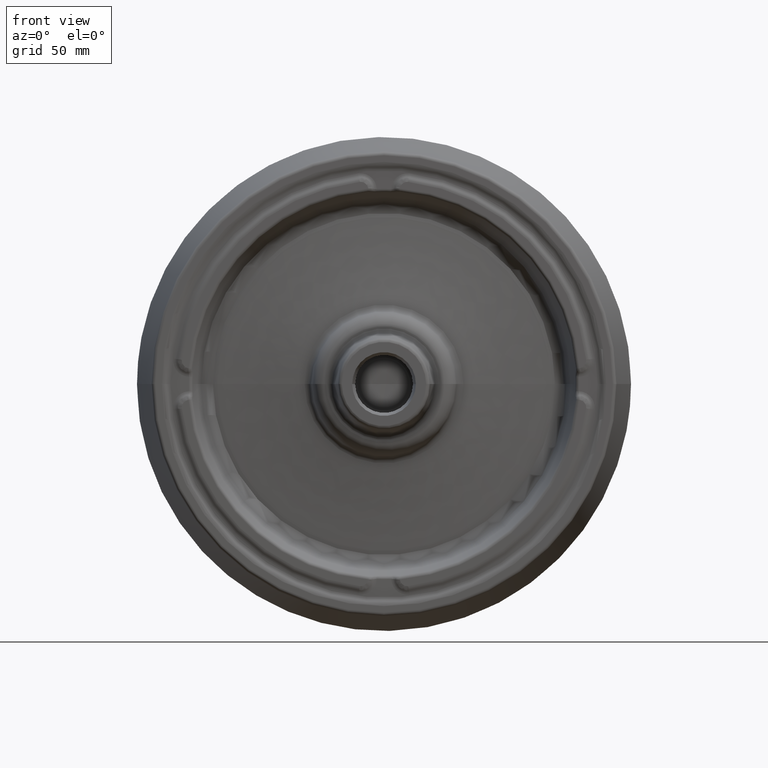
[diagram: clean part render]
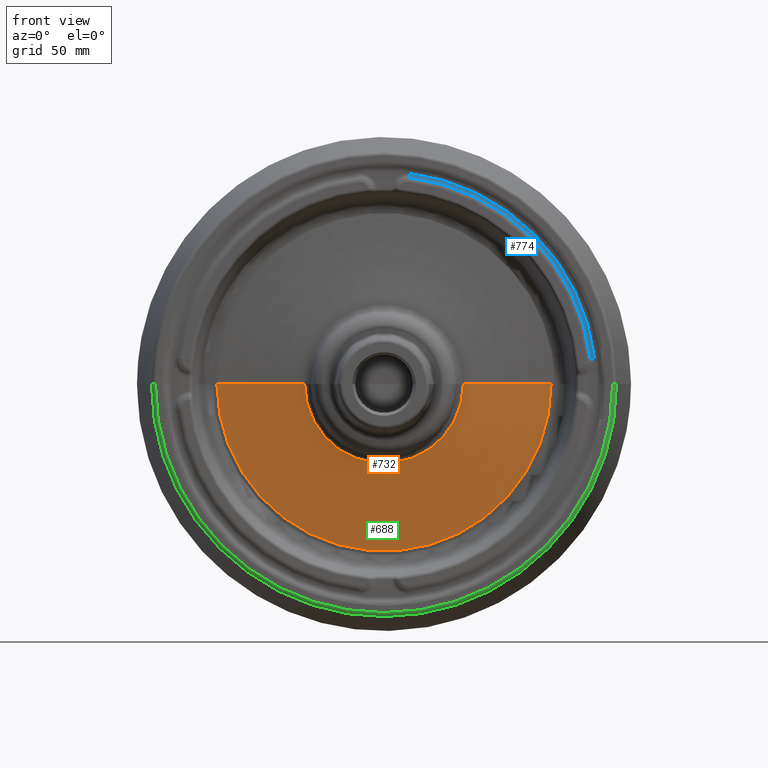
[diagram: same view with three faces highlighted in distinct colors, each labeled with its STEP entity id]
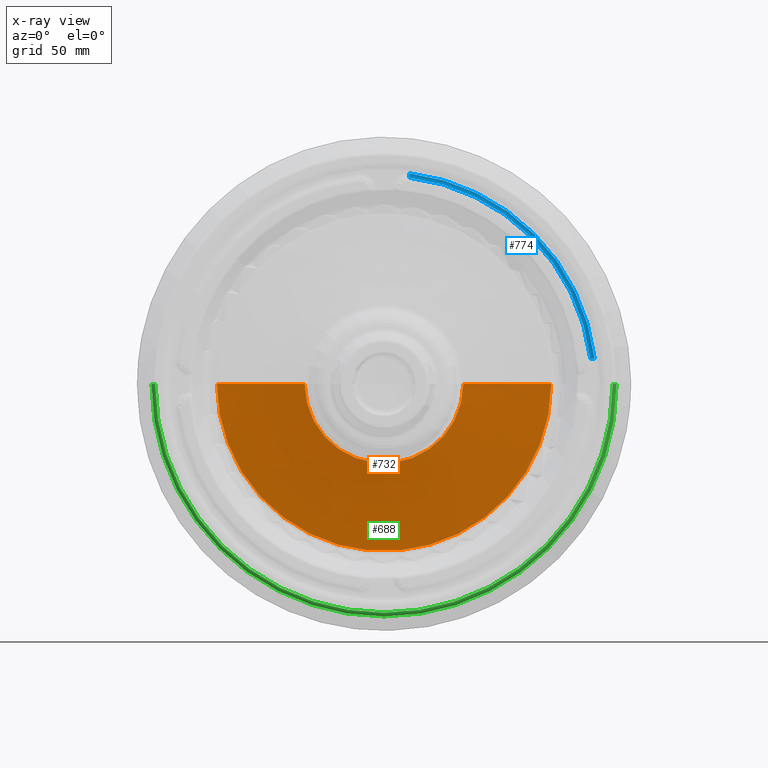
[diagram: x-ray of the same camera — body ghosted, the three highlighted faces saturated]
A machine part, front view with three faces highlighted in distinct colors.
The next image is the same camera in x-ray (body ghosted, the three faces saturated) — at least one of them is partly hidden behind the body in this view.
Their STEP definitions:

[orange] entity #732 — the highlighted face is a SurfaceOfRevolution surface.
#170=SURFACE_OF_REVOLUTION('',#2115,#190);
#190=AXIS1_PLACEMENT('',#9370,#7268);
#732=ADVANCED_FACE('',(#1300),#170,.F.);
#1300=FACE_OUTER_BOUND('',#1717,.T.);
#1717=EDGE_LOOP('',(#2757,#2758,#2759,#2760));
#2112=B_SPLINE_CURVE_WITH_KNOTS('',3,(#9348,#9349,#9350,#9351),
 .UNSPECIFIED.,.F.,.F.,(4,4),(0.,1.),.UNSPECIFIED.);
#2113=B_SPLINE_CURVE_WITH_KNOTS('',3,(#9355,#9356,#9357,#9358),
 .UNSPECIFIED.,.F.,.F.,(4,4),(0.,1.),.UNSPECIFIED.);
#2115=B_SPLINE_CURVE_WITH_KNOTS('',3,(#9366,#9367,#9368,#9369),
 .UNSPECIFIED.,.F.,.F.,(4,4),(0.,1.),.UNSPECIFIED.);
#2757=ORIENTED_EDGE('',*,*,#5053,.F.);
#2758=ORIENTED_EDGE('',*,*,#5054,.T.);
#2759=ORIENTED_EDGE('',*,*,#5051,.T.);
#2760=ORIENTED_EDGE('',*,*,#5055,.F.);
#4453=VERTEX_POINT('',#9343);
#4454=VERTEX_POINT('',#9345);
#4455=VERTEX_POINT('',#9352);
#4456=VERTEX_POINT('',#9354);
#5051=EDGE_CURVE('',#4455,#4454,#2112,.T.);
#5053=EDGE_CURVE('',#4456,#4453,#2113,.T.);
#5054=EDGE_CURVE('',#4456,#4455,#5937,.T.);
#5055=EDGE_CURVE('',#4453,#4454,#5938,.T.);
#5937=CIRCLE('',#6405,128.3791279149);
#5938=CIRCLE('',#6406,60.94708849647);
#6405=AXIS2_PLACEMENT_3D('',#9364,#7264,#7265);
#6406=AXIS2_PLACEMENT_3D('',#9365,#7266,#7267);
#7264=DIRECTION('',(0.,-1.,0.));
#7265=DIRECTION('',(-1.,0.,0.));
#7266=DIRECTION('',(0.,-1.,0.));
#7267=DIRECTION('',(-1.,0.,0.));
#7268=DIRECTION('',(0.,-1.,0.));
#9343=CARTESIAN_POINT('',(-60.94708849647,20.08992255179,0.));
#9345=CARTESIAN_POINT('',(60.94708849647,20.08992255179,0.));
#9348=CARTESIAN_POINT('',(128.3790856184,27.56850578,1.368322122275E-012));
#9349=CARTESIAN_POINT('',(105.8069991423,26.14170694966,1.367638872284E-012));
#9350=CARTESIAN_POINT('',(83.2762797427,23.65063748608,0.));
#9351=CARTESIAN_POINT('',(60.94708849647,20.08992255179,0.));
#9352=CARTESIAN_POINT('',(128.3791279149,27.56850512911,0.));
#9354=CARTESIAN_POINT('',(-128.3791279149,27.56850512911,1.572190880783E-014));
#9355=CARTESIAN_POINT('',(-128.3790856184,27.56850578,-1.254302217646E-012));
#9356=CARTESIAN_POINT('',(-105.8069991423,26.14170694966,-1.261561954348E-012));
#9357=CARTESIAN_POINT('',(-83.2762797427,23.65063748608,-1.054244846608E-014));
#9358=CARTESIAN_POINT('',(-60.94708849647,20.08992255179,-1.772406410449E-014));
#9364=CARTESIAN_POINT('',(0.,27.56850512911,0.));
#9365=CARTESIAN_POINT('',(0.,20.08992255179,0.));
#9366=CARTESIAN_POINT('',(60.94708849647,20.08992255179,0.));
#9367=CARTESIAN_POINT('',(83.27629464651,23.65063986271,0.));
#9368=CARTESIAN_POINT('',(105.8070302877,26.1417070181,0.));
#9369=CARTESIAN_POINT('',(128.379131885,27.56850538007,0.));
#9370=CARTESIAN_POINT('',(2.187684007943E-014,133.35,0.));

[blue] entity #774 — the highlighted toroidal blend (fillet) surface has major radius 162.972 mm and minor (blend) radius 6 mm.
#516=TOROIDAL_SURFACE('',#6448,162.972135955,6.);
#774=ADVANCED_FACE('',(#1342),#516,.F.);
#1342=FACE_OUTER_BOUND('',#1759,.T.);
#1759=EDGE_LOOP('',(#2926,#2927,#2928,#2929));
#2926=ORIENTED_EDGE('',*,*,#5084,.F.);
#2927=ORIENTED_EDGE('',*,*,#4943,.T.);
#2928=ORIENTED_EDGE('',*,*,#5094,.T.);
#2929=ORIENTED_EDGE('',*,*,#5113,.F.);
#4394=VERTEX_POINT('',#8645);
#4395=VERTEX_POINT('',#8647);
#4463=VERTEX_POINT('',#9766);
#4465=VERTEX_POINT('',#9859);
#4943=EDGE_CURVE('',#4395,#4394,#5860,.T.);
#5084=EDGE_CURVE('',#4395,#4463,#5948,.T.);
#5094=EDGE_CURVE('',#4394,#4465,#5953,.T.);
#5113=EDGE_CURVE('',#4463,#4465,#5961,.T.);
#5860=CIRCLE('',#6290,162.972135955);
#5948=CIRCLE('',#6425,6.);
#5953=CIRCLE('',#6432,6.);
#5961=CIRCLE('',#6447,159.6555111646);
#6290=AXIS2_PLACEMENT_3D('',#8646,#7009,#7010);
#6425=AXIS2_PLACEMENT_3D('',#9765,#7307,#7308);
#6432=AXIS2_PLACEMENT_3D('',#9877,#7321,#7322);
#6447=AXIS2_PLACEMENT_3D('',#10148,#7351,#7352);
#6448=AXIS2_PLACEMENT_3D('',#10149,#7353,#7354);
#7009=DIRECTION('',(0.,-1.,0.));
#7010=DIRECTION('',(0.992821999214597,0.,0.1196013289037));
#7307=DIRECTION('',(-0.1196013289037,0.,0.992821999214597));
#7308=DIRECTION('',(0.,1.,0.));
#7321=DIRECTION('',(-0.992821999214597,0.,0.1196013289037));
#7322=DIRECTION('',(-2.31296463463574E-015,1.,-1.85037170770859E-014));
#7351=DIRECTION('',(0.,-1.,0.));
#7352=DIRECTION('',(0.992821999214597,0.,0.1196013289037));
#7353=DIRECTION('',(0.,-1.,0.));
#7354=DIRECTION('',(-0.992830656860434,0.,-0.119529439043604));
#8645=CARTESIAN_POINT('',(19.49168403448,2.,161.8023218351));
#8646=CARTESIAN_POINT('',(0.,2.,0.));
#8647=CARTESIAN_POINT('',(161.8023218351,2.,19.49168403448));
#9765=CARTESIAN_POINT('',(161.8023218351,-4.,19.49168403449));
#9766=CARTESIAN_POINT('',(158.5095037801,1.,19.09501130208));
#9859=CARTESIAN_POINT('',(19.09501130208,1.,158.5095037801));
#9877=CARTESIAN_POINT('',(19.49168403448,-4.,161.8023218351));
#10148=CARTESIAN_POINT('',(0.,1.,0.));
#10149=CARTESIAN_POINT('',(0.,-4.,0.));

[green] entity #688 — the highlighted toroidal blend (fillet) surface has major radius 175.655 mm and minor (blend) radius 3 mm.
#484=TOROIDAL_SURFACE('',#6318,175.6544692325,3.);
#688=ADVANCED_FACE('',(#1257),#484,.T.);
#1257=FACE_OUTER_BOUND('',#1672,.T.);
#1672=EDGE_LOOP('',(#2581,#2582,#2583,#2584));
#2581=ORIENTED_EDGE('',*,*,#4962,.F.);
#2582=ORIENTED_EDGE('',*,*,#4963,.T.);
#2583=ORIENTED_EDGE('',*,*,#4960,.T.);
#2584=ORIENTED_EDGE('',*,*,#4956,.F.);
#4405=VERTEX_POINT('',#8673);
#4406=VERTEX_POINT('',#8674);
#4407=VERTEX_POINT('',#8682);
#4408=VERTEX_POINT('',#8684);
#4956=EDGE_CURVE('',#4405,#4406,#5873,.T.);
#4960=EDGE_CURVE('',#4407,#4406,#5877,.T.);
#4962=EDGE_CURVE('',#4408,#4405,#5879,.T.);
#4963=EDGE_CURVE('',#4408,#4407,#5880,.T.);
#5873=CIRCLE('',#6306,175.6544692325);
#5877=CIRCLE('',#6313,3.);
#5879=CIRCLE('',#6315,3.);
#5880=CIRCLE('',#6317,178.6502046978);
#6306=AXIS2_PLACEMENT_3D('',#8672,#7041,#7042);
#6313=AXIS2_PLACEMENT_3D('',#8681,#7055,#7056);
#6315=AXIS2_PLACEMENT_3D('',#8685,#7059,#7060);
#6317=AXIS2_PLACEMENT_3D('',#8687,#7063,#7064);
#6318=AXIS2_PLACEMENT_3D('',#8688,#7065,#7066);
#7041=DIRECTION('',(0.,-1.,0.));
#7042=DIRECTION('',(-1.,0.,0.));
#7055=DIRECTION('',(0.,0.,-1.));
#7056=DIRECTION('',(1.85037170770859E-014,-1.,0.));
#7059=DIRECTION('',(0.,0.,1.));
#7060=DIRECTION('',(-1.85037170770859E-014,-1.,0.));
#7063=DIRECTION('',(0.,-1.,0.));
#7064=DIRECTION('',(-1.,0.,4.25391733955E-013));
#7065=DIRECTION('',(0.,-1.,0.));
#7066=DIRECTION('',(0.999988643253505,0.,-0.00476585396479003));
#8672=CARTESIAN_POINT('',(0.,5.684341886081E-014,0.));
#8673=CARTESIAN_POINT('',(-175.6544692325,8.911062138604E-014,-1.084892599114E-013));
#8674=CARTESIAN_POINT('',(175.6544692325,2.457621633558E-014,2.080069827097E-013));
#8681=CARTESIAN_POINT('',(175.6544692325,3.,-7.249756350802E-014));
#8682=CARTESIAN_POINT('',(178.6502046978,2.840096836217,-7.594025408508E-011));
#8684=CARTESIAN_POINT('',(-178.6502046978,2.840096836217,3.272367003234E-011));
#8685=CARTESIAN_POINT('',(-175.6544692325,3.,1.345590305846E-013));
#8687=CARTESIAN_POINT('',(0.,2.840096836217,0.));
#8688=CARTESIAN_POINT('',(0.,3.,0.));